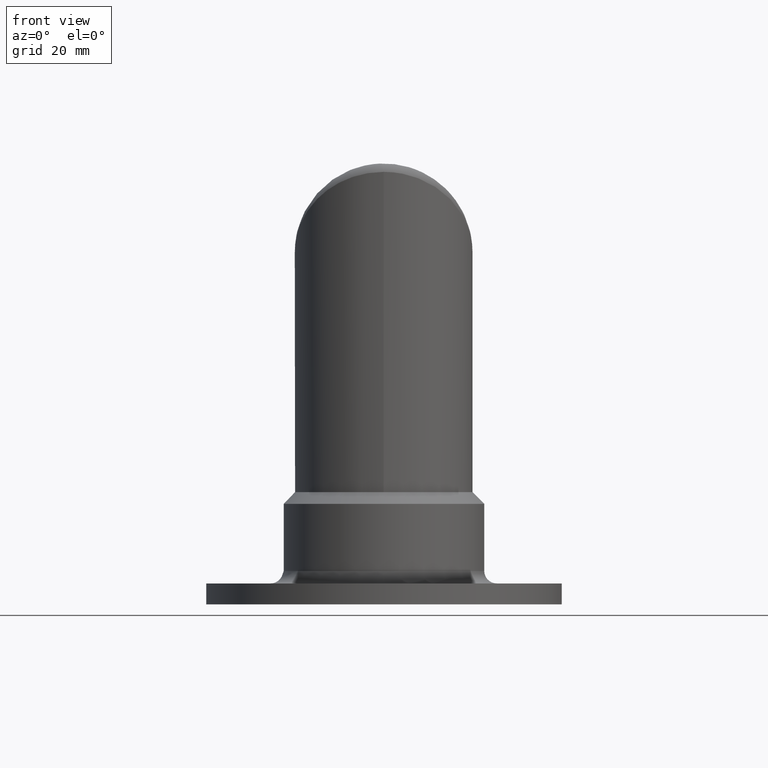
[diagram: clean part render]
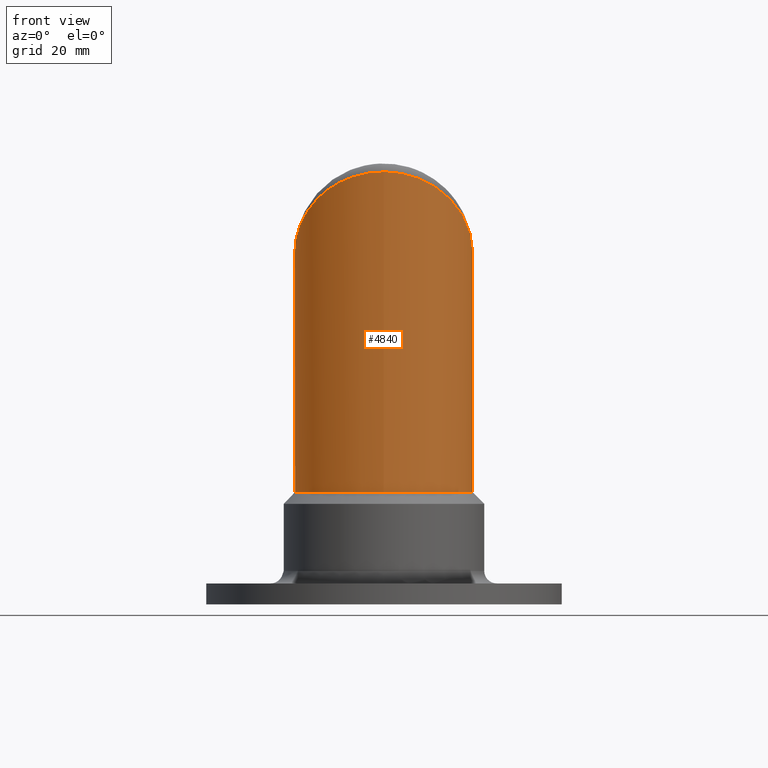
[diagram: same view with one face highlighted and labeled with its STEP entity id]
A machine part, front view. The second image highlights one B-rep face of the part: STEP entity #4840.
In plain terms, the highlighted cylindrical surface (bore or boss wall) has radius 21.2 mm, axis along (0, -0, 1).
Its self-contained STEP definition (entity closure, byte-faithful):
#118 = CIRCLE ( 'NONE', #13878, 21.19999999999999929 ) ;
#417 = ORIENTED_EDGE ( 'NONE', *, *, #4558, .T. ) ;
#1310 = VERTEX_POINT ( 'NONE', #16373 ) ;
#1781 =( BOUNDED_CURVE ( )  B_SPLINE_CURVE ( 3, ( #3619, #3517, #14909, #10019 ),
 .UNSPECIFIED., .F., .F. ) 
 B_SPLINE_CURVE_WITH_KNOTS ( ( 4, 4 ),
 ( 1.570796326794896336, 4.712388980384689674 ),
 .UNSPECIFIED. ) 
 CURVE ( )  GEOMETRIC_REPRESENTATION_ITEM ( )  RATIONAL_B_SPLINE_CURVE ( ( 1.000000000000000000, 0.3333333333333333703, 0.3333333333333333703, 1.000000000000000000 ) ) 
 REPRESENTATION_ITEM ( '' )  );
#1923 = ORIENTED_EDGE ( 'NONE', *, *, #7393, .T. ) ;
#2223 = CARTESIAN_POINT ( 'NONE',  ( 21.20000000000000995, -42.39999999999999858, 122.4000000000000199 ) ) ;
#2693 = FACE_OUTER_BOUND ( 'NONE', #6605, .T. ) ;
#2865 = CARTESIAN_POINT ( 'NONE',  ( 0.000000000000000000, -21.19999999999999929, 26.79999999999998295 ) ) ;
#3517 = CARTESIAN_POINT ( 'NONE',  ( -21.20000000000000639, 42.39999999999998437, 37.60000000000000853 ) ) ;
#3619 = CARTESIAN_POINT ( 'NONE',  ( -21.19999999999999929, -3.453503973595536384E-15, 84.00000000000001421 ) ) ;
#4558 = EDGE_CURVE ( 'NONE', #6159, #6159, #118, .T. ) ;
#4836 = CARTESIAN_POINT ( 'NONE',  ( 21.19999999999999929, 7.686848468410136180E-16, 84.00000000000000000 ) ) ;
#4840 = ADVANCED_FACE ( 'NONE', ( #2693, #15018 ), #15217, .T. ) ;
#5259 = ORIENTED_EDGE ( 'NONE', *, *, #12349, .T. ) ;
#6073 = CARTESIAN_POINT ( 'NONE',  ( -21.19999999999999929, -42.40000000000000568, 122.4000000000000199 ) ) ;
#6159 = VERTEX_POINT ( 'NONE', #2865 ) ;
#6396 = CARTESIAN_POINT ( 'NONE',  ( 21.19999999999999929, 7.686848468410136180E-16, 84.00000000000000000 ) ) ;
#6605 = EDGE_LOOP ( 'NONE', ( #417 ) ) ;
#7378 = CARTESIAN_POINT ( 'NONE',  ( -21.19999999999999929, -3.453503973595536384E-15, 84.00000000000001421 ) ) ;
#7393 = EDGE_CURVE ( 'NONE', #9636, #1310, #10325, .T. ) ;
#7517 = CARTESIAN_POINT ( 'NONE',  ( 0.000000000000000000, 0.000000000000000000, 24.00000000000000000 ) ) ;
#8611 = DIRECTION ( 'NONE',  ( 0.000000000000000000, -1.224646799147353207E-16, 1.000000000000000000 ) ) ;
#8661 = DIRECTION ( 'NONE',  ( 0.000000000000000000, -1.000000000000000000, -1.636531581110195409E-16 ) ) ;
#9636 = VERTEX_POINT ( 'NONE', #6396 ) ;
#10019 = CARTESIAN_POINT ( 'NONE',  ( 21.19999999999999929, 7.686848468410136180E-16, 84.00000000000000000 ) ) ;
#10325 =( BOUNDED_CURVE ( )  B_SPLINE_CURVE ( 3, ( #4836, #2223, #6073, #7378 ),
 .UNSPECIFIED., .F., .F. ) 
 B_SPLINE_CURVE_WITH_KNOTS ( ( 4, 4 ),
 ( 4.712388980384689674, 7.853981633974482790 ),
 .UNSPECIFIED. ) 
 CURVE ( )  GEOMETRIC_REPRESENTATION_ITEM ( )  RATIONAL_B_SPLINE_CURVE ( ( 1.000000000000000000, 0.3333333333333333703, 0.3333333333333333703, 1.000000000000000000 ) ) 
 REPRESENTATION_ITEM ( '' )  );
#12349 = EDGE_CURVE ( 'NONE', #1310, #9636, #1781, .T. ) ;
#13878 = AXIS2_PLACEMENT_3D ( 'NONE', #14251, #15760, #15650 ) ;
#14251 = CARTESIAN_POINT ( 'NONE',  ( 0.000000000000000000, -3.429011037612572513E-16, 26.79999999999998650 ) ) ;
#14731 = EDGE_LOOP ( 'NONE', ( #1923, #5259 ) ) ;
#14909 = CARTESIAN_POINT ( 'NONE',  ( 21.19999999999998863, 42.39999999999999858, 37.60000000000000853 ) ) ;
#15018 = FACE_OUTER_BOUND ( 'NONE', #14731, .T. ) ;
#15217 = CYLINDRICAL_SURFACE ( 'NONE', #15787, 21.19999999999999929 ) ;
#15650 = DIRECTION ( 'NONE',  ( 0.000000000000000000, -1.000000000000000000, -1.636531581110195409E-16 ) ) ;
#15760 = DIRECTION ( 'NONE',  ( -0.000000000000000000, -1.224646799147353207E-16, 1.000000000000000000 ) ) ;
#15787 = AXIS2_PLACEMENT_3D ( 'NONE', #7517, #8611, #8661 ) ;
#16373 = CARTESIAN_POINT ( 'NONE',  ( -21.19999999999999929, -3.453503973595536384E-15, 84.00000000000001421 ) ) ;